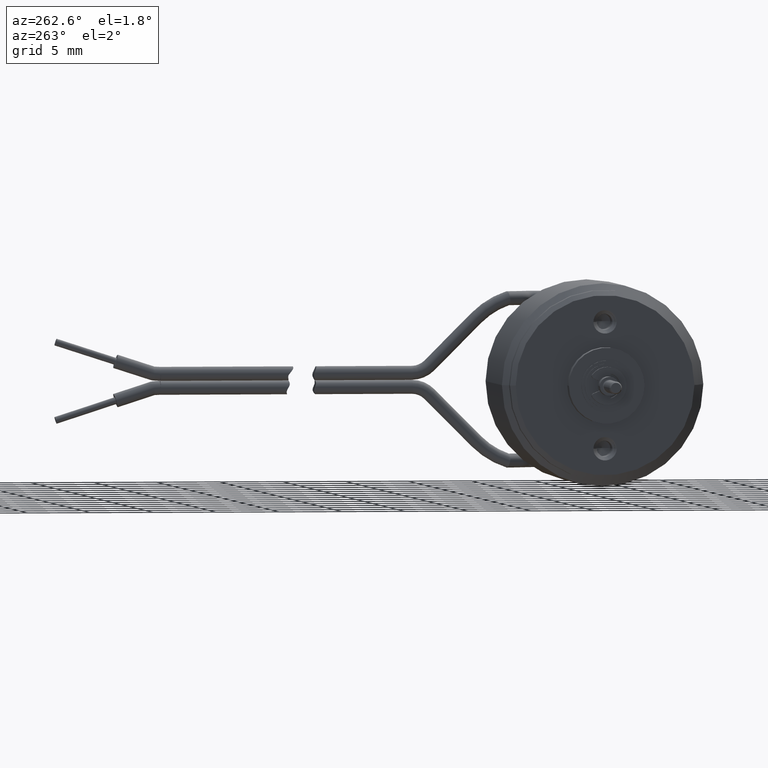
[diagram: clean part render]
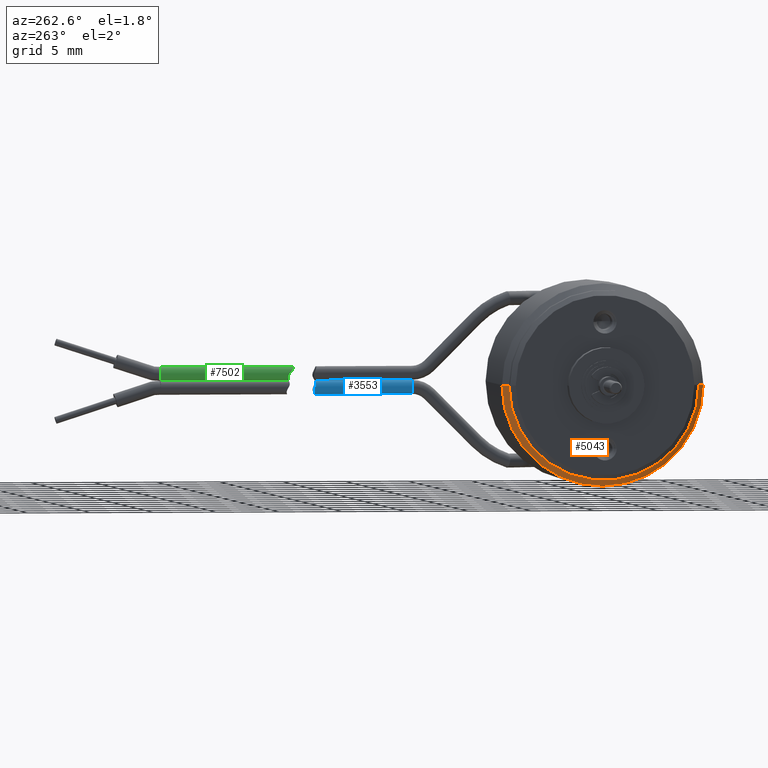
[diagram: same view with three faces highlighted in distinct colors, each labeled with its STEP entity id]
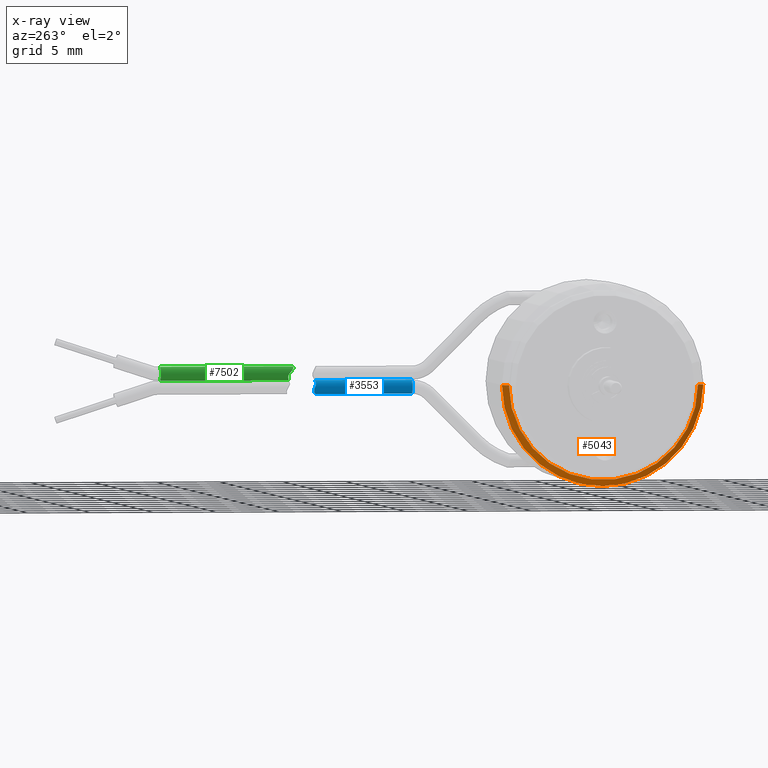
[diagram: x-ray of the same camera — body ghosted, the three highlighted faces saturated]
A machine part, auxiliary view with three faces highlighted in distinct colors.
The next image is the same camera in x-ray (body ghosted, the three faces saturated) — at least one of them is partly hidden behind the body in this view.
Their STEP definitions:

[orange] entity #5043 — the highlighted conical surface has half-angle 45 deg.
#1575=DIRECTION('',(-7.071067811865E-1,-7.071067811865E-1,0.E0));
#1576=VECTOR('',#1575,7.071067811866E-1);
#1577=CARTESIAN_POINT('',(8.2E0,8.E0,0.E0));
#1578=LINE('',#1577,#1576);
#1584=DIRECTION('',(-7.071067811865E-1,7.071067811865E-1,0.E0));
#1585=VECTOR('',#1584,7.071067811866E-1);
#1586=CARTESIAN_POINT('',(8.2E0,-8.E0,0.E0));
#1587=LINE('',#1586,#1585);
#1588=CARTESIAN_POINT('',(8.2E0,0.E0,0.E0));
#1589=DIRECTION('',(-1.E0,0.E0,0.E0));
#1590=DIRECTION('',(0.E0,1.E0,0.E0));
#1591=AXIS2_PLACEMENT_3D('',#1588,#1589,#1590);
#1598=CARTESIAN_POINT('',(7.7E0,0.E0,0.E0));
#1599=DIRECTION('',(-1.E0,0.E0,0.E0));
#1600=DIRECTION('',(0.E0,1.E0,0.E0));
#1601=AXIS2_PLACEMENT_3D('',#1598,#1599,#1600);
#2543=CARTESIAN_POINT('',(8.2E0,8.E0,0.E0));
#2544=VERTEX_POINT('',#2543);
#2545=CARTESIAN_POINT('',(7.7E0,7.5E0,0.E0));
#2546=VERTEX_POINT('',#2545);
#2573=CARTESIAN_POINT('',(8.2E0,-8.E0,0.E0));
#2574=VERTEX_POINT('',#2573);
#2575=CARTESIAN_POINT('',(7.7E0,-7.5E0,0.E0));
#2576=VERTEX_POINT('',#2575);
#5031=CARTESIAN_POINT('',(7.95E0,0.E0,0.E0));
#5032=DIRECTION('',(1.E0,0.E0,0.E0));
#5033=DIRECTION('',(0.E0,-1.E0,0.E0));
#5034=AXIS2_PLACEMENT_3D('',#5031,#5032,#5033);
#5035=CONICAL_SURFACE('',#5034,7.75E0,4.5E1);
#5036=ORIENTED_EDGE('',*,*,#5021,.T.);
#5038=ORIENTED_EDGE('',*,*,#5037,.T.);
#5039=ORIENTED_EDGE('',*,*,#5024,.F.);
#5040=ORIENTED_EDGE('',*,*,#4995,.F.);
#5041=EDGE_LOOP('',(#5036,#5038,#5039,#5040));
#5042=FACE_OUTER_BOUND('',#5041,.F.);
#5043=ADVANCED_FACE('',(#5042),#5035,.T.);
#1592=CIRCLE('',#1591,8.E0);
#1602=CIRCLE('',#1601,7.5E0);
#4995=EDGE_CURVE('',#2544,#2574,#1592,.T.);
#5021=EDGE_CURVE('',#2544,#2546,#1578,.T.);
#5024=EDGE_CURVE('',#2574,#2576,#1587,.T.);
#5037=EDGE_CURVE('',#2546,#2576,#1602,.T.);

[blue] entity #3553 — the highlighted cylindrical surface (edge-blend (fillet) strip) has radius 0.55 mm, axis along (0, 1, 0).
#369=CARTESIAN_POINT('',(2.24E1,1.332659346304E1,-5.5E-1));
#370=DIRECTION('',(0.E0,1.E0,0.E0));
#371=DIRECTION('',(-6.987154898018E-2,0.E0,-9.975559967456E-1));
#372=AXIS2_PLACEMENT_3D('',#369,#370,#371);
#374=DIRECTION('',(0.E0,1.E0,0.E0));
#375=VECTOR('',#374,7.666353297102E0);
#376=CARTESIAN_POINT('',(2.236157064806E1,1.332659346304E1,-1.098655798210E0));
#377=LINE('',#376,#375);
#378=CARTESIAN_POINT('',(2.240032756674E1,2.102917383916E1,-1.299233651828E-5));
#379=CARTESIAN_POINT('',(2.234282671748E1,2.102920913859E1,7.834343896256E-5));
#380=CARTESIAN_POINT('',(2.223123501088E1,2.102211511282E1,-1.768922198586E-2));
#381=CARTESIAN_POINT('',(2.208289526558E1,2.099628691533E1,-9.132200943541E-2));
#382=CARTESIAN_POINT('',(2.197155411977E1,2.097322938345E1,-1.949967626060E-1));
#383=CARTESIAN_POINT('',(2.189474666667E1,2.098246639328E1,-3.172966514804E-1));
#384=CARTESIAN_POINT('',(2.185247725004E1,2.103296029964E1,-4.544770242950E-1));
#385=CARTESIAN_POINT('',(2.184628923630E1,2.109240065737E1,-5.871786158570E-1));
#386=CARTESIAN_POINT('',(2.186941365472E1,2.113505745354E1,-7.123685676809E-1));
#387=CARTESIAN_POINT('',(2.191986152005E1,2.114130555881E1,-8.269006876616E-1));
#388=CARTESIAN_POINT('',(2.198735679137E1,2.110664997667E1,-9.197677510592E-1));
#389=CARTESIAN_POINT('',(2.208040528242E1,2.105465615337E1,-1.004458209580E0));
#390=CARTESIAN_POINT('',(2.220863012040E1,2.100864503878E1,-1.072860720870E0));
#391=CARTESIAN_POINT('',(2.230885456554E1,2.099520084853E1,-1.094963419683E0));
#392=CARTESIAN_POINT('',(2.236157064806E1,2.099294676014E1,-1.098655798210E0));
#394=CARTESIAN_POINT('',(2.240032756674E1,2.102917383916E1,-1.299233651828E-5));
#395=CARTESIAN_POINT('',(2.240662835466E1,2.102918072175E1,-1.299233651828E-5));
#396=CARTESIAN_POINT('',(2.241921226603E1,2.102943670138E1,1.036567337196E-3));
#397=CARTESIAN_POINT('',(2.243055763169E1,2.102915775201E1,-7.604514990970E-4));
#398=CARTESIAN_POINT('',(2.243684883472E1,2.102930460886E1,-3.271544999782E-4));
#434=CARTESIAN_POINT('',(2.240032756674E1,2.102917383916E1,-1.299233651828E-5));
#440=CARTESIAN_POINT('',(2.236157064806E1,2.099294676014E1,-1.098655798210E0));
#458=CARTESIAN_POINT('',(2.243684883472E1,2.102930460886E1,-3.271544999782E-4));
#465=DIRECTION('',(-2.051897241940E-4,9.999999702316E-1,1.320375696830E-4));
#466=VECTOR('',#465,7.702711375120E0);
#467=CARTESIAN_POINT('',(2.243842935194E1,1.332659346304E1,-1.344201789919E-3));
#468=LINE('',#467,#466);
#2900=CARTESIAN_POINT('',(2.243842935194E1,1.332659346304E1,
-1.344201789919E-3));
#2901=CARTESIAN_POINT('',(2.236157064806E1,1.332659346304E1,-1.098655798210E0));
#2902=VERTEX_POINT('',#2900);
#2903=VERTEX_POINT('',#2901);
#3105=VERTEX_POINT('',#440);
#3106=VERTEX_POINT('',#458);
#3108=VERTEX_POINT('',#434);
#3537=CARTESIAN_POINT('',(2.24E1,1.332659346304E1,-5.5E-1));
#3538=DIRECTION('',(0.E0,1.E0,0.E0));
#3539=DIRECTION('',(6.987154898019E-2,0.E0,9.975559967456E-1));
#3540=AXIS2_PLACEMENT_3D('',#3537,#3538,#3539);
#3541=CYLINDRICAL_SURFACE('',#3540,5.5E-1);
#3543=ORIENTED_EDGE('',*,*,#3542,.T.);
#3545=ORIENTED_EDGE('',*,*,#3544,.F.);
#3546=ORIENTED_EDGE('',*,*,#3531,.F.);
#3548=ORIENTED_EDGE('',*,*,#3547,.T.);
#3550=ORIENTED_EDGE('',*,*,#3549,.F.);
#3551=EDGE_LOOP('',(#3543,#3545,#3546,#3548,#3550));
#3552=FACE_OUTER_BOUND('',#3551,.F.);
#3553=ADVANCED_FACE('',(#3552),#3541,.T.);
#373=CIRCLE('',#372,5.5E-1);
#393=B_SPLINE_CURVE_WITH_KNOTS('',3,(#378,#379,#380,#381,#382,#383,#384,#385,
#386,#387,#388,#389,#390,#391,#392),.UNSPECIFIED.,.F.,.F.,(4,1,1,1,1,1,1,1,1,1,
1,1,4),(0.E0,8.333333333333E-2,1.666666666667E-1,2.5E-1,3.333333333333E-1,
4.166666666667E-1,5.E-1,5.833333333333E-1,6.666666666667E-1,7.5E-1,
8.333333333333E-1,9.166666666667E-1,1.E0),.UNSPECIFIED.);
#399=B_SPLINE_CURVE_WITH_KNOTS('',3,(#394,#395,#396,#397,#398),.UNSPECIFIED.,
.F.,.F.,(4,1,4),(0.E0,5.E-1,1.E0),.UNSPECIFIED.);
#3531=EDGE_CURVE('',#2903,#2902,#373,.T.);
#3542=EDGE_CURVE('',#3108,#3106,#399,.T.);
#3544=EDGE_CURVE('',#2902,#3106,#468,.T.);
#3547=EDGE_CURVE('',#2903,#3105,#377,.T.);
#3549=EDGE_CURVE('',#3108,#3105,#393,.T.);

[green] entity #7502 — the highlighted cylindrical surface (edge-blend (fillet) strip) has radius 0.55 mm, axis along (0, -1, 0).
#6951=CARTESIAN_POINT('',(2.24E1,3.332659346304E1,1.1E0));
#6960=DIRECTION('',(3.245959242455E-5,-9.999999994731E-1,-3.801225484812E-7));
#6961=VECTOR('',#6960,1.020274115958E1);
#6962=CARTESIAN_POINT('',(2.24E1,3.332659346304E1,0.E0));
#6963=LINE('',#6962,#6961);
#6970=CARTESIAN_POINT('',(2.240033117682E1,2.312385230883E1,
-3.878291971075E-6));
#6971=CARTESIAN_POINT('',(2.234229508824E1,2.312385230883E1,
-3.878291971036E-6));
#6972=CARTESIAN_POINT('',(2.222970855624E1,2.312977957467E1,1.842601584978E-2));
#6973=CARTESIAN_POINT('',(2.208673092957E1,2.315344032227E1,8.936000322491E-2));
#6974=CARTESIAN_POINT('',(2.197886988682E1,2.318244676673E1,1.877444296737E-1));
#6975=CARTESIAN_POINT('',(2.190910095553E1,2.319961168054E1,2.925376362011E-1));
#6976=CARTESIAN_POINT('',(2.186532182552E1,2.318688226556E1,4.035740486874E-1));
#6977=CARTESIAN_POINT('',(2.184672492252E1,2.312165557209E1,5.218272613756E-1));
#6978=CARTESIAN_POINT('',(2.185260906826E1,2.302936479298E1,6.306273571726E-1));
#6979=CARTESIAN_POINT('',(2.187742047691E1,2.293296276056E1,7.321537570978E-1));
#6980=CARTESIAN_POINT('',(2.192291967468E1,2.284766774847E1,8.307517927201E-1));
#6981=CARTESIAN_POINT('',(2.198646598164E1,2.279310909764E1,9.179172009097E-1));
#6982=CARTESIAN_POINT('',(2.206723517724E1,2.276852731939E1,9.927551460097E-1));
#6983=CARTESIAN_POINT('',(2.216745842751E1,2.276664533224E1,1.053208626360E0));
#6984=CARTESIAN_POINT('',(2.228225460134E1,2.277452582227E1,1.091697850769E0));
#6985=CARTESIAN_POINT('',(2.236079663677E1,2.277722489024E1,1.1E0));
#6986=CARTESIAN_POINT('',(2.24E1,2.277722489024E1,1.1E0));
#6988=CARTESIAN_POINT('',(2.185E1,3.332659346304E1,5.500000000059E-1));
#6989=CARTESIAN_POINT('',(2.185E1,3.332659346304E1,6.103646458857E-1));
#6990=CARTESIAN_POINT('',(2.186997052049E1,3.332659346304E1,7.293856052113E-1));
#6991=CARTESIAN_POINT('',(2.195282285249E1,3.332659346304E1,8.852246749707E-1));
#6992=CARTESIAN_POINT('',(2.207448811453E1,3.332659346304E1,1.004036381980E0));
#6993=CARTESIAN_POINT('',(2.222835023144E1,3.332659346304E1,1.081956336457E0));
#6994=CARTESIAN_POINT('',(2.234262472771E1,3.332659346304E1,1.1E0));
#6995=CARTESIAN_POINT('',(2.24E1,3.332659346304E1,1.1E0));
#6997=DIRECTION('',(0.E0,-1.E0,0.E0));
#6998=VECTOR('',#6997,1.054936857280E1);
#6999=CARTESIAN_POINT('',(2.24E1,3.332659346304E1,1.1E0));
#7000=LINE('',#6999,#6998);
#7005=CARTESIAN_POINT('',(2.24E1,3.332659346304E1,5.5E-1));
#7006=DIRECTION('',(0.E0,-1.E0,0.E0));
#7007=DIRECTION('',(-1.E0,0.E0,0.E0));
#7008=AXIS2_PLACEMENT_3D('',#7005,#7006,#7007);
#7169=CARTESIAN_POINT('',(2.185E1,3.332659346304E1,5.500000000059E-1));
#7171=VERTEX_POINT('',#7169);
#7173=VERTEX_POINT('',#6951);
#7174=CARTESIAN_POINT('',(2.24E1,3.332659346304E1,0.E0));
#7175=VERTEX_POINT('',#7174);
#7209=VERTEX_POINT('',#6970);
#7210=VERTEX_POINT('',#6986);
#7488=CARTESIAN_POINT('',(2.24E1,3.332659346304E1,5.5E-1));
#7489=DIRECTION('',(0.E0,-1.E0,0.E0));
#7490=DIRECTION('',(0.E0,0.E0,-1.E0));
#7491=AXIS2_PLACEMENT_3D('',#7488,#7489,#7490);
#7492=CYLINDRICAL_SURFACE('',#7491,5.5E-1);
#7493=ORIENTED_EDGE('',*,*,#7291,.F.);
#7494=ORIENTED_EDGE('',*,*,#7482,.F.);
#7496=ORIENTED_EDGE('',*,*,#7495,.F.);
#7498=ORIENTED_EDGE('',*,*,#7497,.T.);
#7499=ORIENTED_EDGE('',*,*,#7476,.T.);
#7500=EDGE_LOOP('',(#7493,#7494,#7496,#7498,#7499));
#7501=FACE_OUTER_BOUND('',#7500,.F.);
#7502=ADVANCED_FACE('',(#7501),#7492,.T.);
#6987=B_SPLINE_CURVE_WITH_KNOTS('',3,(#6970,#6971,#6972,#6973,#6974,#6975,#6976,
#6977,#6978,#6979,#6980,#6981,#6982,#6983,#6984,#6985,#6986),.UNSPECIFIED.,.F.,
.F.,(4,1,1,1,1,1,1,1,1,1,1,1,1,1,4),(0.E0,7.142857142857E-2,1.428571428571E-1,
2.142857142857E-1,2.857142857143E-1,3.571428571429E-1,4.285714285714E-1,5.E-1,
5.714285714286E-1,6.428571428571E-1,7.142857142857E-1,7.857142857143E-1,
8.571428571429E-1,9.285714285714E-1,1.E0),.UNSPECIFIED.);
#6996=B_SPLINE_CURVE_WITH_KNOTS('',3,(#6988,#6989,#6990,#6991,#6992,#6993,#6994,
#6995),.UNSPECIFIED.,.F.,.F.,(4,1,1,1,1,4),(0.E0,2.E-1,4.E-1,6.E-1,8.E-1,1.E0),
.UNSPECIFIED.);
#7009=CIRCLE('',#7008,5.5E-1);
#7291=EDGE_CURVE('',#7209,#7210,#6987,.T.);
#7476=EDGE_CURVE('',#7173,#7210,#7000,.T.);
#7482=EDGE_CURVE('',#7175,#7209,#6963,.T.);
#7495=EDGE_CURVE('',#7171,#7175,#7009,.T.);
#7497=EDGE_CURVE('',#7171,#7173,#6996,.T.);